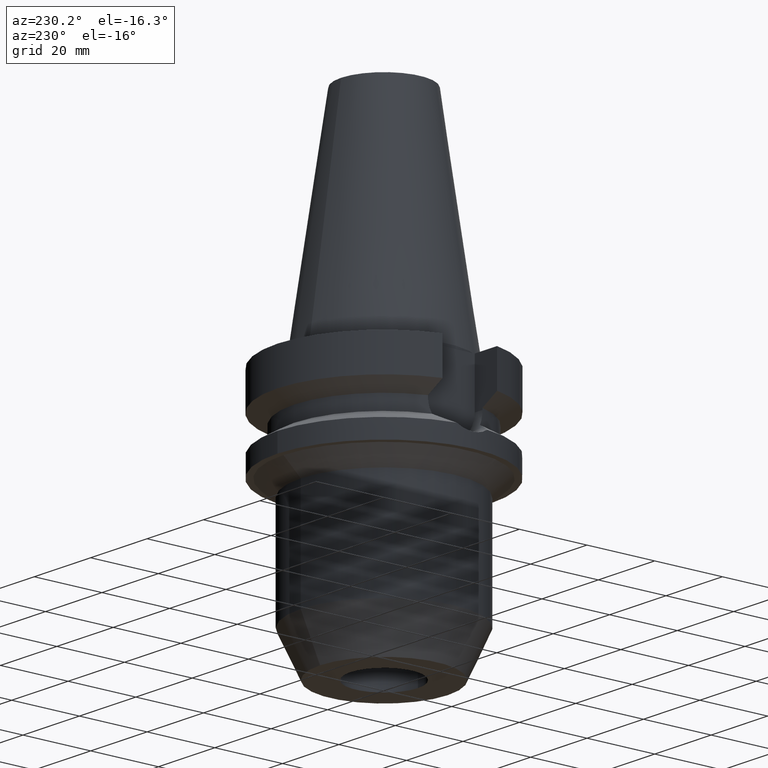
[diagram: clean part render]
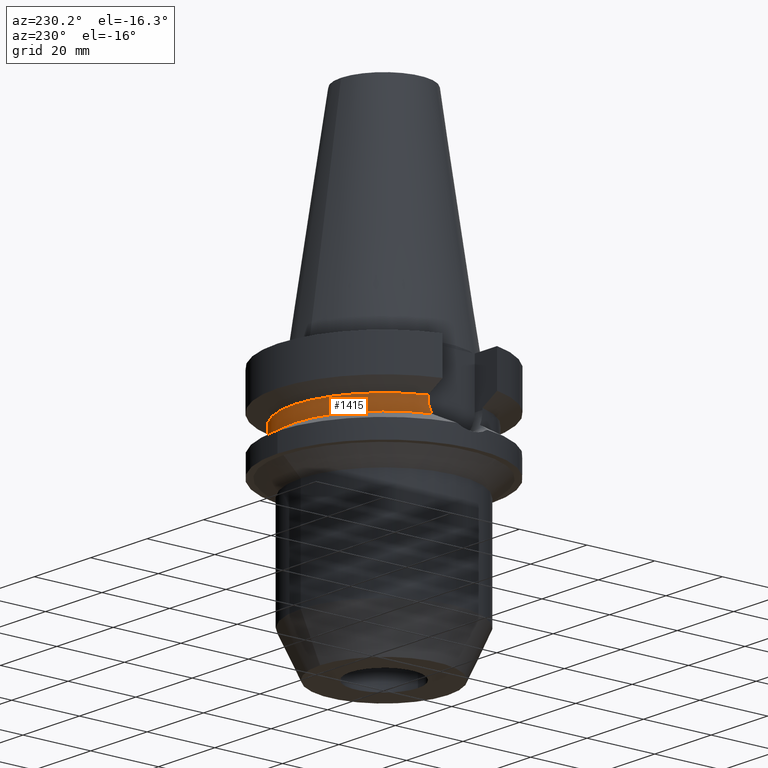
[diagram: same view with one face highlighted and labeled with its STEP entity id]
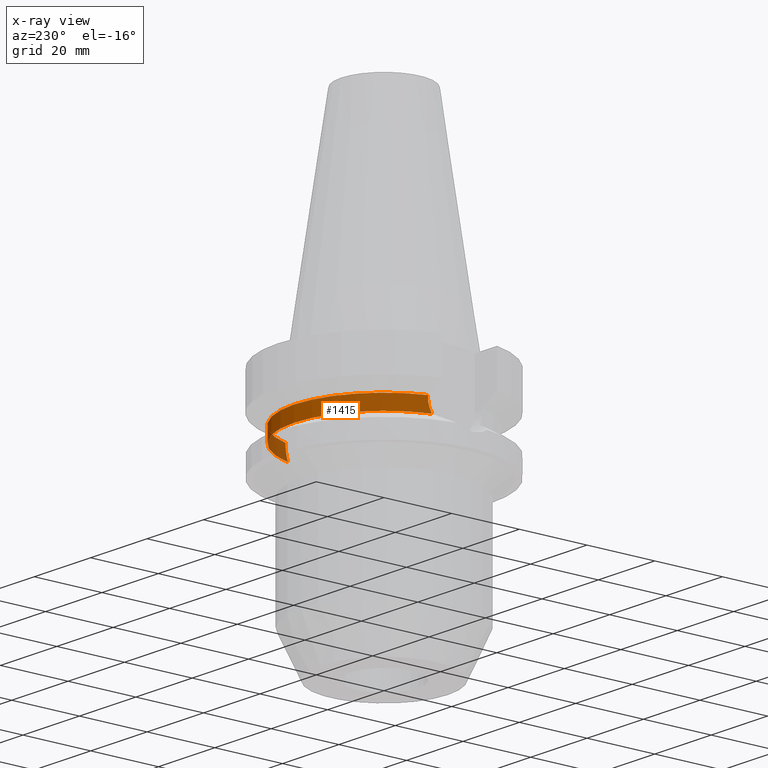
[diagram: x-ray of the same camera — body ghosted, the highlighted face saturated]
A machine part, auxiliary view. The second image highlights one B-rep face of the part: STEP entity #1415.
The next image is the same camera in x-ray: the body ghosted, the highlighted face saturated — about 9% of this face is hidden behind the body in this view.
In plain terms, the highlighted cylindrical surface (partial cylindrical patch) has radius 26.5 mm, axis along (0, 0, -1).
Its self-contained STEP definition (entity closure, byte-faithful):
#354=DIRECTION('',(-1.012437168499E-6,-3.175372401208E-6,-9.999999999944E-1));
#355=VECTOR('',#354,4.977550782460E-1);
#356=CARTESIAN_POINT('',(-2.524772216563E1,8.050001580558E0,-1.445224492176E1));
#357=LINE('',#356,#355);
#361=CARTESIAN_POINT('',(-2.524772266958E1,8.05E0,-1.495E1));
#362=CARTESIAN_POINT('',(-2.524772266958E1,8.05E0,-1.538877714200E1));
#363=CARTESIAN_POINT('',(-2.527040623778E1,7.979394001987E0,-1.625539825032E1));
#364=CARTESIAN_POINT('',(-2.536980332822E1,7.660613844220E0,-1.753834283841E1));
#365=CARTESIAN_POINT('',(-2.547269200039E1,7.310306624385E0,-1.835069109173E1));
#366=CARTESIAN_POINT('',(-2.553175183775E1,7.097862220093E0,-1.874774300139E1));
#371=CARTESIAN_POINT('',(2.553175183775E1,7.097862220093E0,-1.874774300139E1));
#372=CARTESIAN_POINT('',(2.547271859263E1,7.310210969323E0,-1.835086986803E1));
#373=CARTESIAN_POINT('',(2.536983504485E1,7.660514361435E0,-1.753881631251E1));
#374=CARTESIAN_POINT('',(2.527033693534E1,7.979614138128E0,-1.625429252706E1));
#375=CARTESIAN_POINT('',(2.524772266958E1,8.05E0,-1.538829690304E1));
#376=CARTESIAN_POINT('',(2.524772266958E1,8.05E0,-1.495E1));
#381=DIRECTION('',(2.941988537298E-6,-9.227150035334E-6,9.999999999531E-1));
#382=VECTOR('',#381,4.977079092833E-1);
#383=CARTESIAN_POINT('',(2.524772266958E1,8.05E0,-1.495E1));
#384=LINE('',#383,#382);
#398=CARTESIAN_POINT('',(0.E0,1.065333950388E-14,-1.445225699861E1));
#399=DIRECTION('',(0.E0,0.E0,-1.E0));
#400=DIRECTION('',(-9.527442516822E-1,3.037735849057E-1,0.E0));
#401=AXIS2_PLACEMENT_3D('',#398,#399,#400);
#406=CARTESIAN_POINT('',(0.E0,1.065333950388E-14,-1.445225699861E1));
#407=DIRECTION('',(0.E0,0.E0,-1.E0));
#408=DIRECTION('',(0.E0,1.E0,0.E0));
#409=AXIS2_PLACEMENT_3D('',#406,#407,#408);
#451=CARTESIAN_POINT('',(-2.553175183775E1,7.097862220093E0,-1.874774300139E1));
#592=CARTESIAN_POINT('',(0.E0,0.E0,-1.874774300139E1));
#593=DIRECTION('',(0.E0,0.E0,1.E0));
#594=DIRECTION('',(9.634623335001E-1,2.678438573620E-1,0.E0));
#595=AXIS2_PLACEMENT_3D('',#592,#593,#594);
#600=CARTESIAN_POINT('',(0.E0,0.E0,-1.874774300139E1));
#601=DIRECTION('',(0.E0,0.E0,1.E0));
#602=DIRECTION('',(0.E0,1.E0,0.E0));
#603=AXIS2_PLACEMENT_3D('',#600,#601,#602);
#1077=CARTESIAN_POINT('',(2.524772266958E1,8.05E0,-1.495E1));
#1078=VERTEX_POINT('',#1077);
#1079=VERTEX_POINT('',#371);
#1085=VERTEX_POINT('',#451);
#1086=CARTESIAN_POINT('',(0.E0,2.65E1,-1.874774300139E1));
#1087=VERTEX_POINT('',#1086);
#1088=VERTEX_POINT('',#361);
#1103=CARTESIAN_POINT('',(-2.524772216563E1,8.050001580558E0,
-1.445224492176E1));
#1104=VERTEX_POINT('',#1103);
#1105=CARTESIAN_POINT('',(2.524772413383E1,8.049995407574E0,-1.445229209074E1));
#1106=VERTEX_POINT('',#1105);
#1107=CARTESIAN_POINT('',(0.E0,2.65E1,-1.445225699861E1));
#1108=VERTEX_POINT('',#1107);
#1393=CARTESIAN_POINT('',(0.E0,2.111352314070E-14,7.2405E1));
#1394=DIRECTION('',(0.E0,0.E0,-1.E0));
#1395=DIRECTION('',(0.E0,-1.E0,0.E0));
#1396=AXIS2_PLACEMENT_3D('',#1393,#1394,#1395);
#1397=CYLINDRICAL_SURFACE('',#1396,2.65E1);
#1399=ORIENTED_EDGE('',*,*,#1398,.T.);
#1401=ORIENTED_EDGE('',*,*,#1400,.T.);
#1403=ORIENTED_EDGE('',*,*,#1402,.F.);
#1405=ORIENTED_EDGE('',*,*,#1404,.F.);
#1407=ORIENTED_EDGE('',*,*,#1406,.T.);
#1408=ORIENTED_EDGE('',*,*,#1380,.T.);
#1410=ORIENTED_EDGE('',*,*,#1409,.F.);
#1412=ORIENTED_EDGE('',*,*,#1411,.F.);
#1413=EDGE_LOOP('',(#1399,#1401,#1403,#1405,#1407,#1408,#1410,#1412));
#1414=FACE_OUTER_BOUND('',#1413,.F.);
#367=B_SPLINE_CURVE_WITH_KNOTS('',3,(#361,#362,#363,#364,#365,#366),
.UNSPECIFIED.,.F.,.F.,(4,1,1,4),(0.E0,3.333333333333E-1,6.666666666667E-1,1.E0),
.UNSPECIFIED.);
#377=B_SPLINE_CURVE_WITH_KNOTS('',3,(#371,#372,#373,#374,#375,#376),
.UNSPECIFIED.,.F.,.F.,(4,1,1,4),(0.E0,3.333333333333E-1,6.666666666667E-1,1.E0),
.UNSPECIFIED.);
#402=CIRCLE('',#401,2.65E1);
#410=CIRCLE('',#409,2.65E1);
#596=CIRCLE('',#595,2.65E1);
#604=CIRCLE('',#603,2.65E1);
#1380=EDGE_CURVE('',#1078,#1106,#384,.T.);
#1398=EDGE_CURVE('',#1104,#1088,#357,.T.);
#1400=EDGE_CURVE('',#1088,#1085,#367,.T.);
#1402=EDGE_CURVE('',#1087,#1085,#604,.T.);
#1404=EDGE_CURVE('',#1079,#1087,#596,.T.);
#1406=EDGE_CURVE('',#1079,#1078,#377,.T.);
#1409=EDGE_CURVE('',#1108,#1106,#410,.T.);
#1411=EDGE_CURVE('',#1104,#1108,#402,.T.);
#1415=ADVANCED_FACE('',(#1414),#1397,.T.);